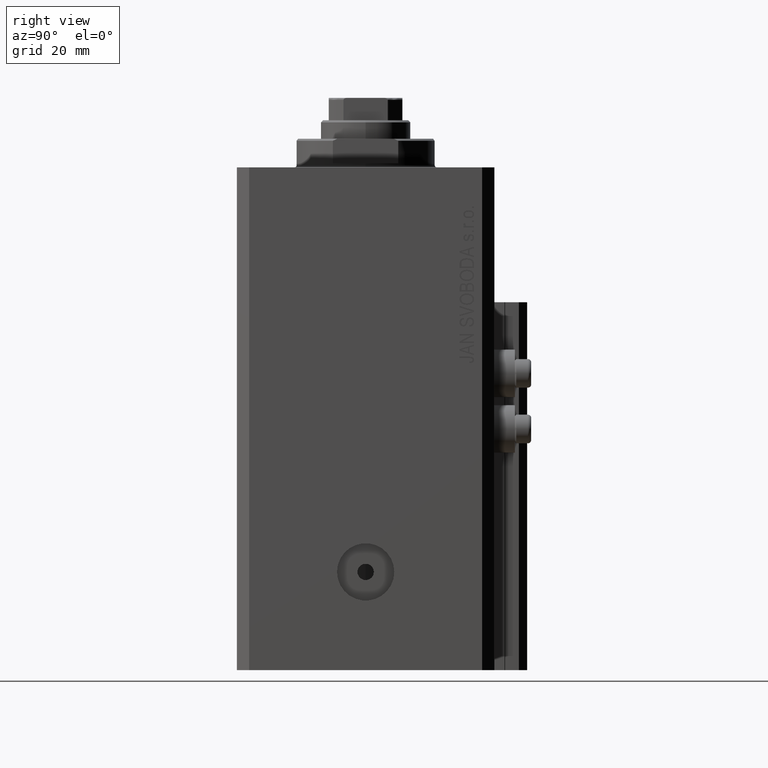
[diagram: clean part render]
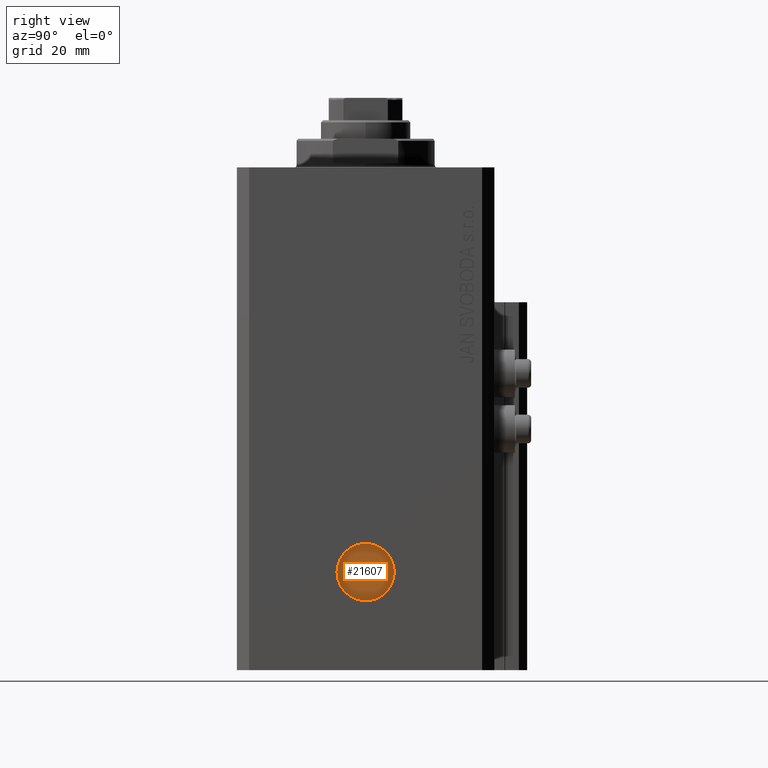
[diagram: same view with one face highlighted and labeled with its STEP entity id]
A machine part, right view. The second image highlights one B-rep face of the part: STEP entity #21607.
In plain terms, the highlighted planar face has unit normal (1, -0, 0).
Its self-contained STEP definition (entity closure, byte-faithful):
#702 = DIRECTION ( 'NONE',  ( 1.000000000000000000, -1.334402673828349134E-14, 0.000000000000000000 ) ) ;
#940 = DIRECTION ( 'NONE',  ( 1.288651725011342390E-14, 1.000000000000000000, 0.000000000000000000 ) ) ;
#4305 = CIRCLE ( 'NONE', #30247, 1.999999999999996225 ) ;
#5814 = CARTESIAN_POINT ( 'NONE',  ( 38.00000000000017764, -6.999999999999901412, -99.00000000000000000 ) ) ;
#10562 = EDGE_CURVE ( 'NONE', #14585, #45207, #35963, .T. ) ;
#11453 = CARTESIAN_POINT ( 'NONE',  ( 38.00000000000027001, 9.869897671684396916E-14, -99.00000000000000000 ) ) ;
#11943 = CARTESIAN_POINT ( 'NONE',  ( 38.00000000000027001, 9.869897671684396916E-14, -99.00000000000000000 ) ) ;
#12410 = DIRECTION ( 'NONE',  ( 1.000000000000000000, -1.334402673828349134E-14, 0.000000000000000000 ) ) ;
#12895 = DIRECTION ( 'NONE',  ( 1.387778780781448358E-14, 1.000000000000000000, 0.000000000000000000 ) ) ;
#13590 = DIRECTION ( 'NONE',  ( 1.000000000000000000, -1.334402673828349134E-14, 0.000000000000000000 ) ) ;
#13903 = AXIS2_PLACEMENT_3D ( 'NONE', #11453, #702, #940 ) ;
#14319 = ORIENTED_EDGE ( 'NONE', *, *, #10562, .T. ) ;
#14585 = VERTEX_POINT ( 'NONE', #17426 ) ;
#15326 = VERTEX_POINT ( 'NONE', #36375 ) ;
#16192 = CARTESIAN_POINT ( 'NONE',  ( 38.00000000000029843, 2.000000000000095035, -99.00000000000000000 ) ) ;
#16574 = CARTESIAN_POINT ( 'NONE',  ( 38.00000000000027001, 9.869897671684396916E-14, -99.00000000000000000 ) ) ;
#17426 = CARTESIAN_POINT ( 'NONE',  ( 38.00000000000036238, 7.000000000000098588, -99.00000000000000000 ) ) ;
#18647 = FACE_BOUND ( 'NONE', #36885, .T. ) ;
#19493 = VERTEX_POINT ( 'NONE', #16192 ) ;
#19595 = ORIENTED_EDGE ( 'NONE', *, *, #31935, .F. ) ;
#21607 = ADVANCED_FACE ( 'NONE', ( #18647, #44648 ), #45112, .T. ) ;
#22370 = EDGE_CURVE ( 'NONE', #45207, #14585, #40171, .T. ) ;
#23276 = AXIS2_PLACEMENT_3D ( 'NONE', #16574, #31130, #45691 ) ;
#23940 = ORIENTED_EDGE ( 'NONE', *, *, #22370, .T. ) ;
#24397 = ORIENTED_EDGE ( 'NONE', *, *, #27937, .F. ) ;
#27937 = EDGE_CURVE ( 'NONE', #15326, #19493, #38676, .T. ) ;
#28540 = DIRECTION ( 'NONE',  ( 1.000000000000000000, -1.334402673828349134E-14, 0.000000000000000000 ) ) ;
#29023 = EDGE_LOOP ( 'NONE', ( #14319, #23940 ) ) ;
#30247 = AXIS2_PLACEMENT_3D ( 'NONE', #46286, #13590, #12895 ) ;
#31130 = DIRECTION ( 'NONE',  ( 1.000000000000000000, -1.334402673828349134E-14, 0.000000000000000000 ) ) ;
#31935 = EDGE_CURVE ( 'NONE', #19493, #15326, #4305, .T. ) ;
#35963 = CIRCLE ( 'NONE', #13903, 7.000000000000000000 ) ;
#36375 = CARTESIAN_POINT ( 'NONE',  ( 38.00000000000024158, -1.999999999999897193, -99.00000000000000000 ) ) ;
#36885 = EDGE_LOOP ( 'NONE', ( #19595, #24397 ) ) ;
#38355 = CARTESIAN_POINT ( 'NONE',  ( 38.00000000000027001, 9.869897671684393130E-14, -99.00000000000000000 ) ) ;
#38676 = CIRCLE ( 'NONE', #44797, 1.999999999999996225 ) ;
#40171 = CIRCLE ( 'NONE', #23276, 7.000000000000000000 ) ;
#40619 = DIRECTION ( 'NONE',  ( 1.334402673828349134E-14, 1.000000000000000000, 0.000000000000000000 ) ) ;
#43101 = DIRECTION ( 'NONE',  ( 1.387778780781448358E-14, 1.000000000000000000, 0.000000000000000000 ) ) ;
#44648 = FACE_OUTER_BOUND ( 'NONE', #29023, .T. ) ;
#44797 = AXIS2_PLACEMENT_3D ( 'NONE', #38355, #28540, #43101 ) ;
#45112 = PLANE ( 'NONE',  #47113 ) ;
#45207 = VERTEX_POINT ( 'NONE', #5814 ) ;
#45691 = DIRECTION ( 'NONE',  ( 1.288651725011342390E-14, 1.000000000000000000, 0.000000000000000000 ) ) ;
#46286 = CARTESIAN_POINT ( 'NONE',  ( 38.00000000000027001, 9.869897671684393130E-14, -99.00000000000000000 ) ) ;
#47113 = AXIS2_PLACEMENT_3D ( 'NONE', #11943, #12410, #40619 ) ;